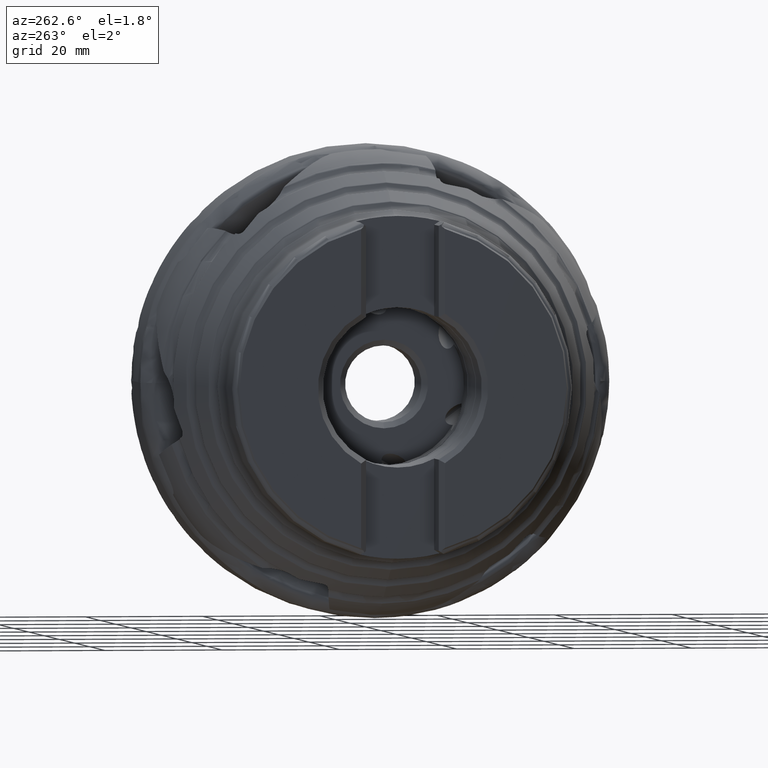
[diagram: clean part render]
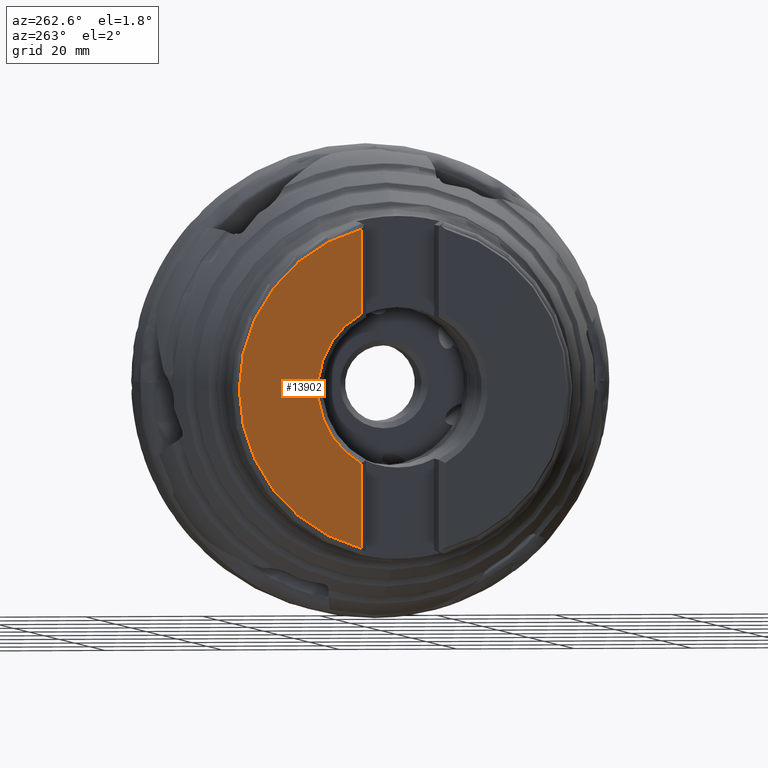
[diagram: same view with one face highlighted and labeled with its STEP entity id]
A machine part, auxiliary view. The second image highlights one B-rep face of the part: STEP entity #13902.
In plain terms, the highlighted planar face has unit normal (1, 0, -0).
Its self-contained STEP definition (entity closure, byte-faithful):
#1355 = CARTESIAN_POINT ( 'NONE',  ( -49.20000000000000300, 7.150000000000002100, -40.00000000000000000 ) ) ;
#1426 = CARTESIAN_POINT ( 'NONE',  ( -49.20000000000001000, 7.150000000000008300, -26.98873909069520500 ) ) ;
#1625 = CARTESIAN_POINT ( 'NONE',  ( -49.20000000000000300, 0.0000000000000000000, 0.0000000000000000000 ) ) ;
#1968 = LINE ( 'NONE', #1355, #8810 ) ;
#1972 = CIRCLE ( 'NONE', #13595, 27.91978756555322100 ) ;
#2388 = DIRECTION ( 'NONE',  ( -0.0000000000000000000, 0.0000000000000000000, -1.000000000000000000 ) ) ;
#2442 = LINE ( 'NONE', #8240, #19421 ) ;
#2746 = CARTESIAN_POINT ( 'NONE',  ( -49.20000000000000300, 7.150000000000002100, -12.64330356354698600 ) ) ;
#2983 = DIRECTION ( 'NONE',  ( -1.000000000000000000, 0.0000000000000000000, 0.0000000000000000000 ) ) ;
#4325 = EDGE_CURVE ( 'NONE', #13528, #12633, #2442, .T. ) ;
#6153 = ORIENTED_EDGE ( 'NONE', *, *, #6708, .F. ) ;
#6223 = EDGE_CURVE ( 'NONE', #17743, #10633, #1968, .T. ) ;
#6708 = EDGE_CURVE ( 'NONE', #10633, #13528, #14489, .T. ) ;
#6807 = DIRECTION ( 'NONE',  ( 0.0000000000000000000, 0.0000000000000000000, -1.000000000000000000 ) ) ;
#6895 = AXIS2_PLACEMENT_3D ( 'NONE', #19518, #2983, #10485 ) ;
#7539 = EDGE_CURVE ( 'NONE', #17743, #12633, #1972, .T. ) ;
#8240 = CARTESIAN_POINT ( 'NONE',  ( -49.20000000000000300, 7.150000000000002100, -40.00000000000000000 ) ) ;
#8810 = VECTOR ( 'NONE', #8934, 1000.000000000000000 ) ;
#8934 = DIRECTION ( 'NONE',  ( 0.0000000000000000000, 0.0000000000000000000, -1.000000000000000000 ) ) ;
#10090 = EDGE_LOOP ( 'NONE', ( #13969, #14321, #6153, #17675 ) ) ;
#10485 = DIRECTION ( 'NONE',  ( 0.0000000000000000000, 0.0000000000000000000, -1.000000000000000000 ) ) ;
#10633 = VERTEX_POINT ( 'NONE', #11679 ) ;
#11679 = CARTESIAN_POINT ( 'NONE',  ( -49.20000000000000300, 7.150000000000002100, 12.64330356354698800 ) ) ;
#11899 = DIRECTION ( 'NONE',  ( -1.000000000000000000, 0.0000000000000000000, 0.0000000000000000000 ) ) ;
#12633 = VERTEX_POINT ( 'NONE', #1426 ) ;
#13198 = DIRECTION ( 'NONE',  ( 1.000000000000000000, 0.0000000000000000000, -0.0000000000000000000 ) ) ;
#13528 = VERTEX_POINT ( 'NONE', #2746 ) ;
#13595 = AXIS2_PLACEMENT_3D ( 'NONE', #1625, #11899, #18024 ) ;
#13902 = ADVANCED_FACE ( 'NONE', ( #16870 ), #14447, .F. ) ;
#13969 = ORIENTED_EDGE ( 'NONE', *, *, #7539, .T. ) ;
#14321 = ORIENTED_EDGE ( 'NONE', *, *, #4325, .F. ) ;
#14447 = PLANE ( 'NONE',  #16620 ) ;
#14489 = CIRCLE ( 'NONE', #6895, 14.52500000000000000 ) ;
#14842 = CARTESIAN_POINT ( 'NONE',  ( -49.20000000000000300, 7.150000000000002100, 26.98873909069521600 ) ) ;
#16620 = AXIS2_PLACEMENT_3D ( 'NONE', #17666, #13198, #2388 ) ;
#16870 = FACE_OUTER_BOUND ( 'NONE', #10090, .T. ) ;
#17666 = CARTESIAN_POINT ( 'NONE',  ( -49.20000000000000300, -6.025262251804978400E-015, 0.0000000000000000000 ) ) ;
#17675 = ORIENTED_EDGE ( 'NONE', *, *, #6223, .F. ) ;
#17743 = VERTEX_POINT ( 'NONE', #14842 ) ;
#18024 = DIRECTION ( 'NONE',  ( 0.0000000000000000000, 0.0000000000000000000, -1.000000000000000000 ) ) ;
#19421 = VECTOR ( 'NONE', #6807, 1000.000000000000000 ) ;
#19518 = CARTESIAN_POINT ( 'NONE',  ( -49.20000000000000300, 0.0000000000000000000, 0.0000000000000000000 ) ) ;